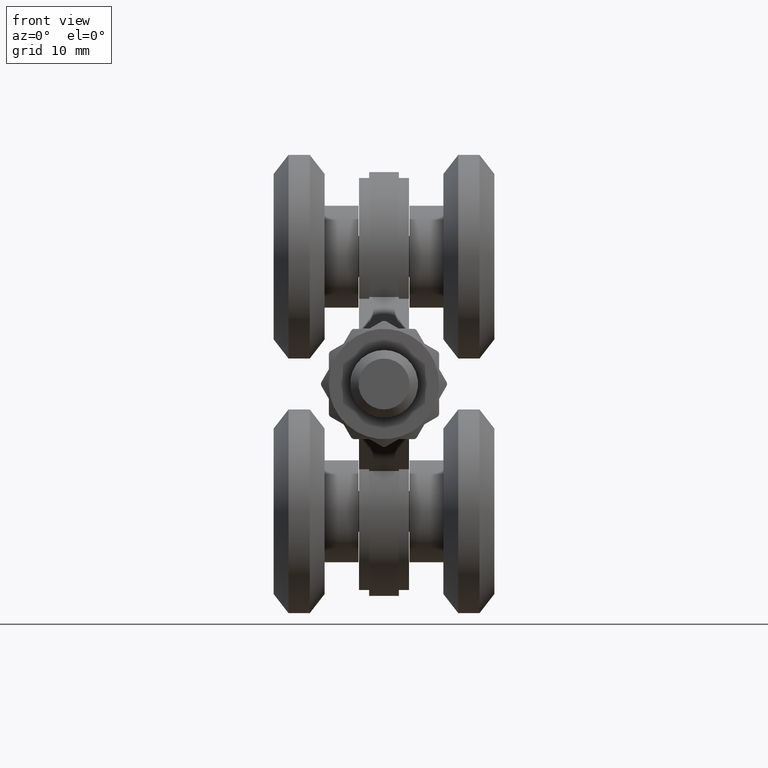
[diagram: clean part render]
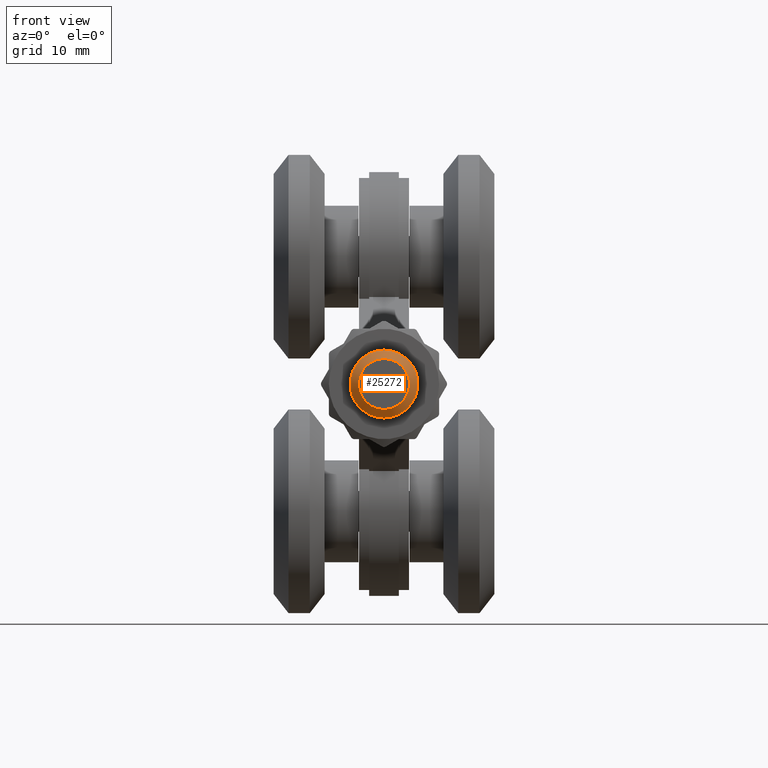
[diagram: same view with one face highlighted and labeled with its STEP entity id]
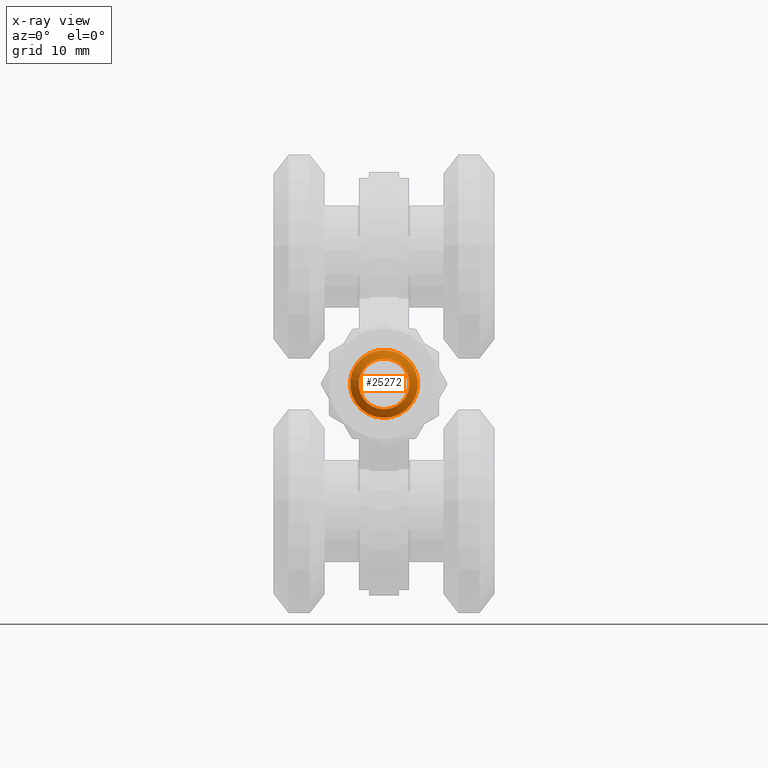
[diagram: x-ray of the same camera — body ghosted, the highlighted face saturated]
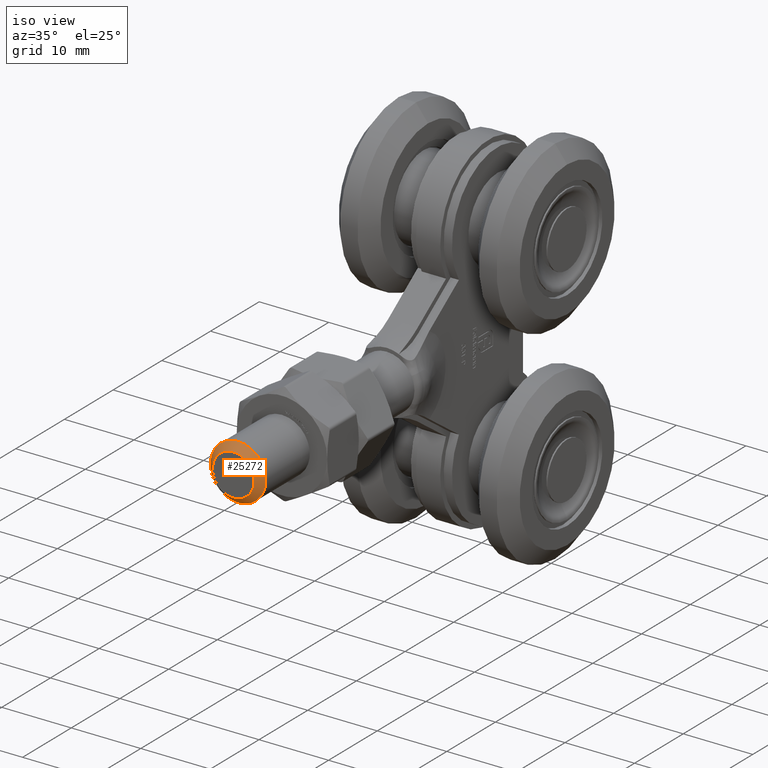
[diagram: same view with one face highlighted and labeled with its STEP entity id]
A machine part, front view. The second image highlights one B-rep face of the part: STEP entity #25272.
The next image is the same camera in x-ray: the body ghosted, the highlighted face saturated — about 0% of this face is hidden behind the body in this view.
A second angle (iso view) of the same face is appended — the face is thin or edge-on in the first view.
In plain terms, the highlighted conical surface has half-angle 45 deg.
Its self-contained STEP definition (entity closure, byte-faithful):
#180 = DIRECTION ( 'NONE',  ( 0.000000000000000000, 1.000000000000000000, 1.224646799147352961E-16 ) ) ;
#376 = CARTESIAN_POINT ( 'NONE',  ( 0.000000000000000000, -31.00000000000000000, -3.796405077356795904E-15 ) ) ;
#1215 = FACE_OUTER_BOUND ( 'NONE', #14688, .T. ) ;
#1805 = CIRCLE ( 'NONE', #21050, 3.000000000000008882 ) ;
#3165 = CIRCLE ( 'NONE', #9221, 4.000000000000000000 ) ;
#5896 = EDGE_LOOP ( 'NONE', ( #27595 ) ) ;
#6755 = DIRECTION ( 'NONE',  ( 0.000000000000000000, 0.000000000000000000, -1.000000000000000000 ) ) ;
#7015 = CARTESIAN_POINT ( 'NONE',  ( 0.000000000000000000, -31.00000000000000000, -3.000000000000012434 ) ) ;
#9221 = AXIS2_PLACEMENT_3D ( 'NONE', #17800, #17888, #6755 ) ;
#9809 = ORIENTED_EDGE ( 'NONE', *, *, #18446, .F. ) ;
#10610 = VERTEX_POINT ( 'NONE', #13710 ) ;
#12148 = CONICAL_SURFACE ( 'NONE', #27605, 3.000000000000008882, 0.7853981633974418397 ) ;
#12858 = FACE_BOUND ( 'NONE', #5896, .T. ) ;
#13441 = VERTEX_POINT ( 'NONE', #7015 ) ;
#13710 = CARTESIAN_POINT ( 'NONE',  ( 0.000000000000000000, -29.99999999999999645, -4.000000000000003553 ) ) ;
#14688 = EDGE_LOOP ( 'NONE', ( #9809 ) ) ;
#16663 = EDGE_CURVE ( 'NONE', #13441, #13441, #1805, .T. ) ;
#17800 = CARTESIAN_POINT ( 'NONE',  ( 0.000000000000000000, -29.99999999999999645, -3.673940397442059967E-15 ) ) ;
#17888 = DIRECTION ( 'NONE',  ( 0.000000000000000000, 1.000000000000000000, 1.224646799147352961E-16 ) ) ;
#18220 = DIRECTION ( 'NONE',  ( 0.000000000000000000, -1.000000000000000000, -1.224646799147353454E-16 ) ) ;
#18426 = CARTESIAN_POINT ( 'NONE',  ( 0.000000000000000000, -31.00000000000000000, -3.796405077356795904E-15 ) ) ;
#18446 = EDGE_CURVE ( 'NONE', #10610, #10610, #3165, .T. ) ;
#21050 = AXIS2_PLACEMENT_3D ( 'NONE', #18426, #18220, #27447 ) ;
#22776 = DIRECTION ( 'NONE',  ( 0.000000000000000000, 0.000000000000000000, 1.000000000000000000 ) ) ;
#25272 = ADVANCED_FACE ( 'NONE', ( #1215, #12858 ), #12148, .T. ) ;
#27447 = DIRECTION ( 'NONE',  ( 0.000000000000000000, 0.000000000000000000, -1.000000000000000000 ) ) ;
#27595 = ORIENTED_EDGE ( 'NONE', *, *, #16663, .F. ) ;
#27605 = AXIS2_PLACEMENT_3D ( 'NONE', #376, #180, #22776 ) ;